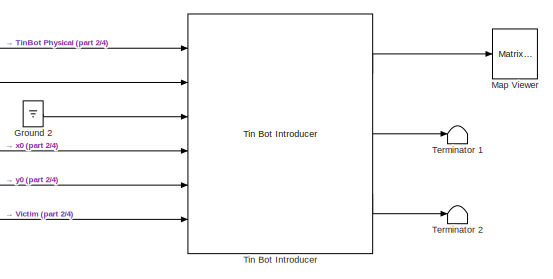
[diagram: root canvas - part 1/4, top center region]
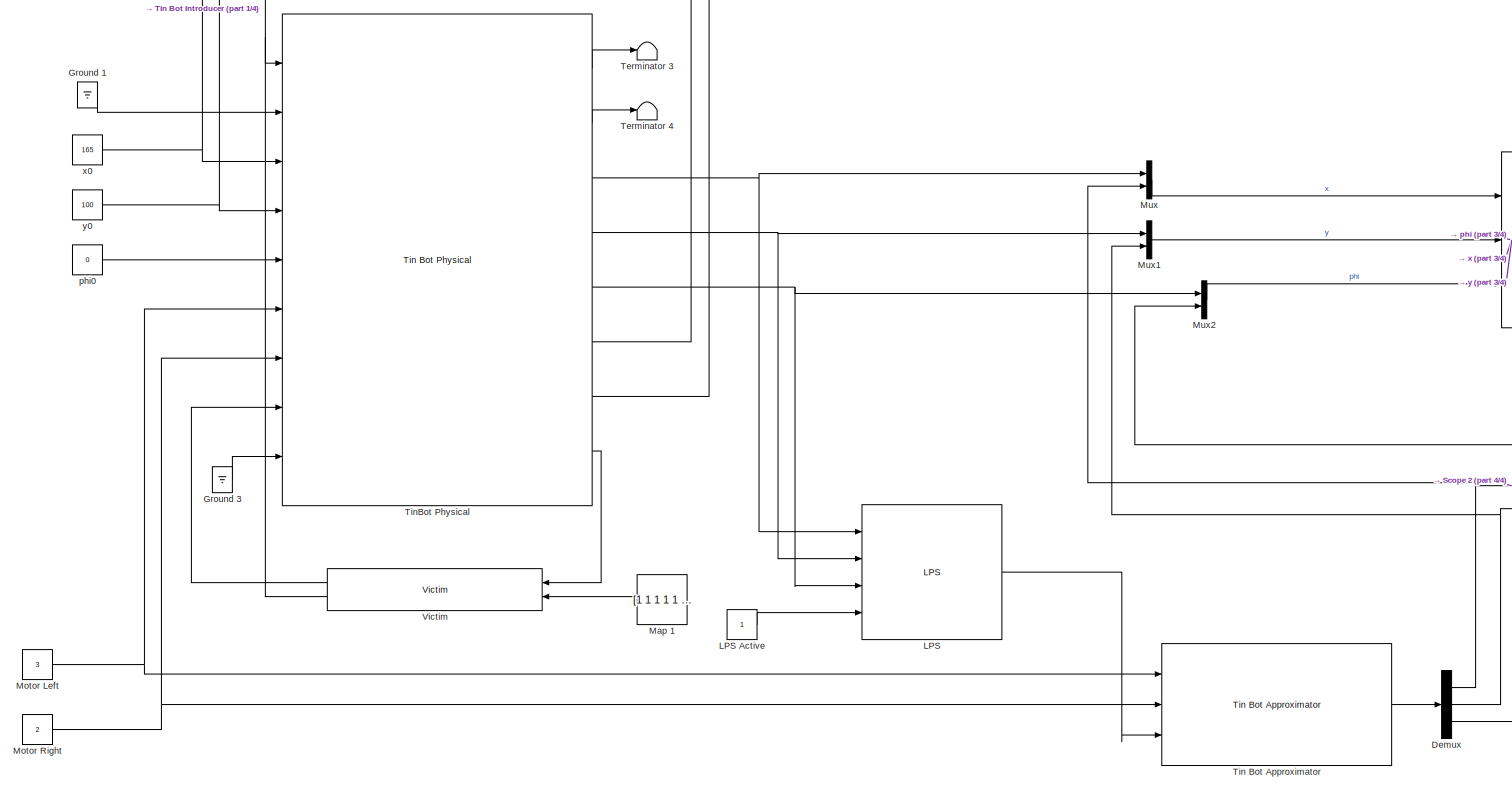
[diagram: root canvas - part 2/4, full width, middle band]
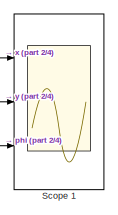
[diagram: root canvas - part 3/4, middle right region]
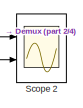
[diagram: root canvas - part 4/4, bottom right region]
MODEL slx_f3214b5d8e0f
KIND model
CONFIG AbsTol = auto
CONFIG FixedStep = 0.01
CONFIG MaxStep = 0.001
CONFIG MinStep = auto
CONFIG RelTol = 1e-3
CONFIG SampleTimeConstraint = Unconstrained
CONFIG Solver = FixedStepAuto
CONFIG SolverMode = Auto
CONFIG SolverName = FixedStepAuto
CONFIG StartTime = 0.0
CONFIG StopTime = 30
BLOCK [Demux] Demux
  DisplayOption = bar
  Outputs = 3
  Ports = [1, 3]
BLOCK [Ground] Ground 1
BLOCK [Ground] Ground 2
BLOCK [Ground] Ground 3
BLOCK [Reference] LPS  REF=tinbot/LPS  (lib defined in slx_3c5c153e9850, slx_5b2796442827, +1 more)
  Ports = [4, 1]
  SourceBlock = tinbot/LPS
BLOCK [Constant] LPS Active
BLOCK [Constant] Map 1
  Value = [1 1 1 1 1 1 1 1 1 1 1 1 1 1 1 1 1 1 1 1 1 1 1 1 1 1 1 1 1 1 1 1 1 1 1 1 1 1 1 1 1 1 1 1 1 1 1 1 1 1 1 1 1 1 1 1 1 1 1 1 1 1 1 1 1 1 1 1 1 1 1 1 1 1 1 1 1 1 1 1 1 1 1 1 1 1 1 1 1 1 1 1 1 1 1 1 1 1 1 1 1 1 1 1 1 1 1 1 1 1 1 1 1 1 1 1 1 1 1 1 1 1 1 1 1 1 1 1 1 1 1 1 1 1 1 1 1 1 1 1 1 1 1 1 1 1 1 1 1 1 1 1 1 1 1 1 1 1 1 1 1 1 1 1 1 1 1 1 1 1 1 1 1 1 1 1 1 1 1 1 1 1 1 1 1 1 1 1 1 1 1 1 1 1 1 1 1 1 1 1...<+79601ch>
BLOCK [Reference] Map Viewer  REF=dspsnks4/Matrix
Viewer
  Ports = [1]
  SourceBlock = dspsnks4/Matrix\nViewer
  SourceType = Matrix Viewer
BLOCK [Constant] Motor Left
  Value = 3
BLOCK [Constant] Motor Right
  Value = 2
BLOCK [Mux] Mux
  DisplayOption = bar
  Inputs = 2
  Ports = [2, 1]
BLOCK [Mux] Mux1
  DisplayOption = bar
  Inputs = 2
  Ports = [2, 1]
BLOCK [Mux] Mux2
  DisplayOption = bar
  Inputs = 2
  Ports = [2, 1]
BLOCK [Scope] Scope 1
  NumInputPorts = 3
  Ports = [3]
  ScopeSpecificationString = Simulink.scopes.TimeScopeBlockCfg('CurrentConfiguration', extmgr.ConfigurationSet(extmgr.Configuration('Core','General UI',true),extmgr.Configuration('Core','Source UI',true),extmgr.Configuration('Sources','WiredSimulink',true,'DataLoggingLimitDataPoints',true,'DataLoggingMaxPoints','10000'),extmgr.Configuration('Visuals','Time Domain',true,'SerializedDisplays',{struct('MinYLimReal','161.52983','M...<+2832ch>
BLOCK [Scope] Scope 2
  NumInputPorts = 2
  Ports = [2]
  ScopeSpecificationString = Simulink.scopes.TimeScopeBlockCfg('CurrentConfiguration', extmgr.ConfigurationSet(extmgr.Configuration('Core','General UI',true),extmgr.Configuration('Core','Source UI',true),extmgr.Configuration('Sources','WiredSimulink',true,'DataLoggingVariableName','ScopeData1'),extmgr.Configuration('Visuals','Time Domain',true,'SerializedDisplays',{struct('MinYLimReal','148.43751','MaxYLimReal','181.56249','Y...<+2085ch>
BLOCK [Terminator] Terminator 1
BLOCK [Terminator] Terminator 2
BLOCK [Terminator] Terminator 3
BLOCK [Terminator] Terminator 4
BLOCK [Reference] Tin Bot Approximator  REF=tinbot/Tin Bot Approximator  (lib defined in slx_3c5c153e9850, slx_5b2796442827, +1 more)
  Ports = [3, 1]
  SourceBlock = tinbot/Tin Bot Approximator
BLOCK [Reference] Tin Bot Introducer  REF=tinbot/Tin Bot Introducer  (lib defined in slx_3c5c153e9850, slx_5b2796442827, +1 more)
  Ports = [6, 3]
  SourceBlock = tinbot/Tin Bot Introducer
BLOCK [Reference] TinBot Physical  REF=tinbot/Tin Bot Physical  (lib defined in slx_3c5c153e9850, slx_5b2796442827, +1 more)
  Ports = [9, 8]
  SourceBlock = tinbot/Tin Bot Physical
BLOCK [Reference] Victim  REF=tinbot/Victim  (lib defined in slx_3c5c153e9850, slx_5b2796442827, +1 more)
  Ports = [2, 2]
  SourceBlock = tinbot/Victim
BLOCK [Constant] phi0
  Value = 0
BLOCK [Constant] x0
  Value = 165
BLOCK [Constant] y0
  Value = 100
NET Demux:1 -> Mux:2, Scope 2:1
NET Demux:2 -> Mux1:2, Scope 2:2
LINE Demux:3 -> Mux2:2
LINE Ground 1:1 -> TinBot Physical:2
LINE Ground 2:1 -> Tin Bot Introducer:3
LINE Ground 3:1 -> TinBot Physical:9
LINE LPS Active:1 -> LPS:4
LINE LPS:1 -> Tin Bot Approximator:3
LINE Map 1:1 -> Victim:2
NET Motor Left:1 -> Tin Bot Approximator:1, TinBot Physical:6
NET Motor Right:1 -> Tin Bot Approximator:2, TinBot Physical:7
LINE Mux1:1 -> Scope 1:2
LINE Mux2:1 -> Scope 1:3
LINE Mux:1 -> Scope 1:1
LINE Tin Bot Approximator:1 -> Demux:1
LINE Tin Bot Introducer:1 -> Map Viewer:1
LINE Tin Bot Introducer:2 -> Terminator 1:1
LINE Tin Bot Introducer:3 -> Terminator 2:1
LINE TinBot Physical:1 -> Terminator 3:1
LINE TinBot Physical:2 -> Terminator 4:1
NET TinBot Physical:3 -> LPS:1, Mux:1
NET TinBot Physical:4 -> LPS:2, Mux1:1
NET TinBot Physical:5 -> LPS:3, Mux2:1
LINE TinBot Physical:6 -> Tin Bot Introducer:1
LINE TinBot Physical:7 -> Tin Bot Introducer:2
LINE TinBot Physical:8 -> Victim:1
LINE Victim:1 -> TinBot Physical:8
NET Victim:2 -> Tin Bot Introducer:6, TinBot Physical:1
LINE phi0:1 -> TinBot Physical:5
NET x0:1 -> Tin Bot Introducer:4, TinBot Physical:3
NET y0:1 -> Tin Bot Introducer:5, TinBot Physical:4
note: NET lines group one-source signal fan-out (src -> all destinations, sorted); 1:1 wires keep LINE
